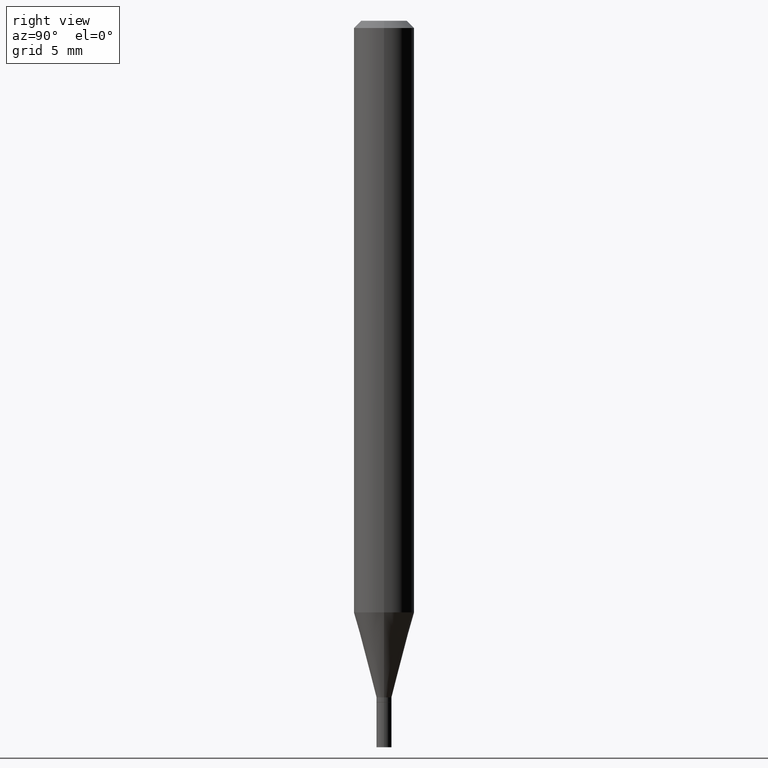
[diagram: clean part render]
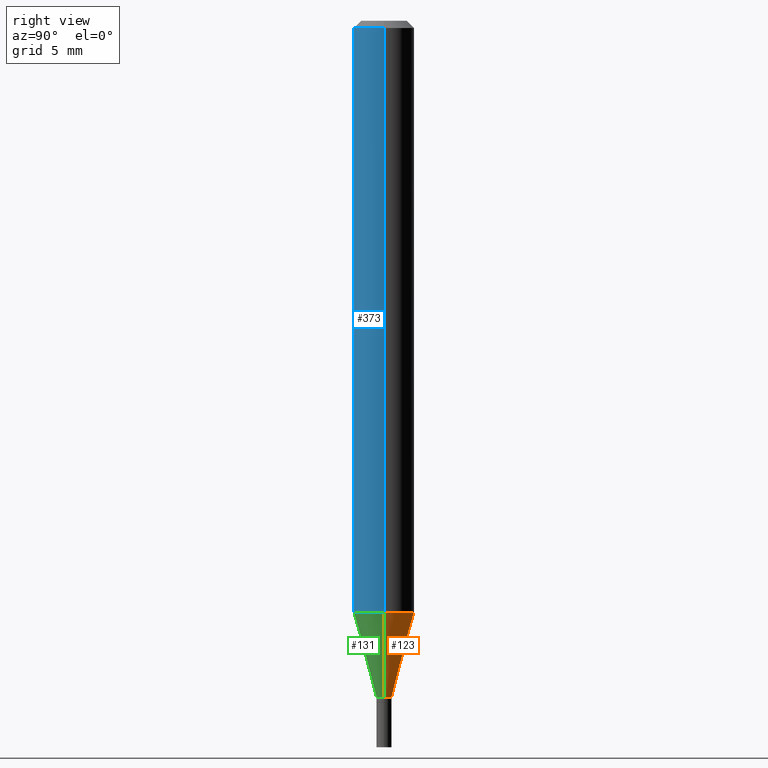
[diagram: same view with three faces highlighted in distinct colors, each labeled with its STEP entity id]
A machine part, right view with three faces highlighted in distinct colors.
Their STEP definitions:

[orange] entity #123 — the highlighted conical surface has half-angle 15 deg.
#3 = EDGE_CURVE ( 'NONE', #184, #27, #83, .T. ) ;
#14 = LINE ( 'NONE', #414, #203 ) ;
#19 = AXIS2_PLACEMENT_3D ( 'NONE', #426, #416, #96 ) ;
#27 = VERTEX_POINT ( 'NONE', #125 ) ;
#28 = EDGE_CURVE ( 'NONE', #463, #419, #406, .T. ) ;
#34 = CARTESIAN_POINT ( 'NONE',  ( 2.987369072089272424E-29, -4.265171300102537329E-15, -1.221593612044262978 ) ) ;
#35 = EDGE_CURVE ( 'NONE', #463, #184, #194, .T. ) ;
#50 = DIRECTION ( 'NONE',  ( 1.000000000000000000, -6.982962677686270655E-15, 0.000000000000000000 ) ) ;
#53 = DIRECTION ( 'NONE',  ( -2.445468806185136597E-29, 3.491481338843145583E-15, 1.000000000000000000 ) ) ;
#55 = CARTESIAN_POINT ( 'NONE',  ( 0.01549999999999992183, -4.985835351868011408E-15, -1.397000000000000242 ) ) ;
#57 = EDGE_CURVE ( 'NONE', #419, #27, #14, .T. ) ;
#77 = DIRECTION ( 'NONE',  ( -2.445468806185136597E-29, 3.491481338843145583E-15, 1.000000000000000000 ) ) ;
#83 = CIRCLE ( 'NONE', #340, 0.06250000000000000000 ) ;
#93 = DIRECTION ( 'NONE',  ( -0.2588190451025212391, 5.211531920934549464E-15, 0.9659258262890679791 ) ) ;
#96 = DIRECTION ( 'NONE',  ( 1.000000000000000000, -6.982962677686273810E-15, 0.000000000000000000 ) ) ;
#123 = ADVANCED_FACE ( 'NONE', ( #418 ), #302, .T. ) ;
#125 = CARTESIAN_POINT ( 'NONE',  ( -0.06250000000000000000, -3.821082090252475502E-15, -1.221593612044262978 ) ) ;
#134 = EDGE_LOOP ( 'NONE', ( #170, #158, #273, #459 ) ) ;
#156 = CARTESIAN_POINT ( 'NONE',  ( 3.416319922240636557E-29, -4.877599430363875031E-15, -1.397000000000000242 ) ) ;
#158 = ORIENTED_EDGE ( 'NONE', *, *, #57, .T. ) ;
#170 = ORIENTED_EDGE ( 'NONE', *, *, #28, .T. ) ;
#184 = VERTEX_POINT ( 'NONE', #275 ) ;
#194 = LINE ( 'NONE', #55, #457 ) ;
#198 = AXIS2_PLACEMENT_3D ( 'NONE', #156, #53, #301 ) ;
#203 = VECTOR ( 'NONE', #93, 39.37007874015748854 ) ;
#273 = ORIENTED_EDGE ( 'NONE', *, *, #3, .F. ) ;
#275 = CARTESIAN_POINT ( 'NONE',  ( 0.06250000000000000000, -4.701606467457928999E-15, -1.221593612044262978 ) ) ;
#297 = CARTESIAN_POINT ( 'NONE',  ( -0.01549999999999992183, -4.294273698286767256E-15, -1.397000000000000242 ) ) ;
#301 = DIRECTION ( 'NONE',  ( 1.000000000000000000, -6.982962677686273810E-15, 0.000000000000000000 ) ) ;
#302 = CONICAL_SURFACE ( 'NONE', #19, 0.01549999999999992183, 0.2617993877991499629 ) ;
#306 = CARTESIAN_POINT ( 'NONE',  ( 0.01549999999999992183, -4.985835351868011408E-15, -1.397000000000000242 ) ) ;
#340 = AXIS2_PLACEMENT_3D ( 'NONE', #34, #77, #50 ) ;
#406 = CIRCLE ( 'NONE', #198, 0.01549999999999992183 ) ;
#414 = CARTESIAN_POINT ( 'NONE',  ( -0.01549999999999992183, -4.767465306321060588E-15, -1.397000000000000242 ) ) ;
#416 = DIRECTION ( 'NONE',  ( -2.445468806185136597E-29, 3.491481338843145583E-15, 1.000000000000000000 ) ) ;
#418 = FACE_OUTER_BOUND ( 'NONE', #134, .T. ) ;
#419 = VERTEX_POINT ( 'NONE', #297 ) ;
#426 = CARTESIAN_POINT ( 'NONE',  ( 3.416319922240636557E-29, -4.877599430363875031E-15, -1.397000000000000242 ) ) ;
#441 = DIRECTION ( 'NONE',  ( 0.2588190451025212391, 1.565188264969622362E-15, 0.9659258262890679791 ) ) ;
#457 = VECTOR ( 'NONE', #441, 39.37007874015748854 ) ;
#459 = ORIENTED_EDGE ( 'NONE', *, *, #35, .F. ) ;
#463 = VERTEX_POINT ( 'NONE', #306 ) ;

[blue] entity #373 — the highlighted cylindrical surface (edge-blend (fillet) strip) has radius 1.5875 mm, axis along (-0, 0, 1).
#5 = VECTOR ( 'NONE', #39, 39.37007874015748143 ) ;
#27 = VERTEX_POINT ( 'NONE', #125 ) ;
#33 = CARTESIAN_POINT ( 'NONE',  ( -0.06250000000000000000, 4.440892098500626162E-16, -3.074334431409316114E-30 ) ) ;
#39 = DIRECTION ( 'NONE',  ( -2.445468806185136877E-29, 3.491481338843145188E-15, 1.000000000000000000 ) ) ;
#41 = DIRECTION ( 'NONE',  ( -2.445468806185136597E-29, 3.491481338843145583E-15, 1.000000000000000000 ) ) ;
#48 = AXIS2_PLACEMENT_3D ( 'NONE', #111, #326, #325 ) ;
#70 = CARTESIAN_POINT ( 'NONE',  ( 3.668203209277705088E-31, -5.237222008264718399E-17, -0.01499999999999999944 ) ) ;
#76 = FACE_OUTER_BOUND ( 'NONE', #181, .T. ) ;
#78 = LINE ( 'NONE', #33, #5 ) ;
#95 = VERTEX_POINT ( 'NONE', #451 ) ;
#111 = CARTESIAN_POINT ( 'NONE',  ( 0.000000000000000000, 0.000000000000000000, 0.000000000000000000 ) ) ;
#116 = CYLINDRICAL_SURFACE ( 'NONE', #48, 0.06250000000000000000 ) ;
#125 = CARTESIAN_POINT ( 'NONE',  ( -0.06250000000000000000, -3.821082090252475502E-15, -1.221593612044262978 ) ) ;
#133 = DIRECTION ( 'NONE',  ( 1.000000000000000000, -6.982962677686266711E-15, 0.000000000000000000 ) ) ;
#144 = ORIENTED_EDGE ( 'NONE', *, *, #332, .T. ) ;
#173 = ORIENTED_EDGE ( 'NONE', *, *, #342, .F. ) ;
#181 = EDGE_LOOP ( 'NONE', ( #173, #391, #144, #205 ) ) ;
#182 = EDGE_CURVE ( 'NONE', #95, #249, #339, .T. ) ;
#183 = LINE ( 'NONE', #251, #404 ) ;
#184 = VERTEX_POINT ( 'NONE', #275 ) ;
#192 = CIRCLE ( 'NONE', #347, 0.06250000000000000000 ) ;
#205 = ORIENTED_EDGE ( 'NONE', *, *, #182, .F. ) ;
#249 = VERTEX_POINT ( 'NONE', #440 ) ;
#251 = CARTESIAN_POINT ( 'NONE',  ( 0.06250000000000000000, -4.364351673553916694E-16, 3.047610484872459871E-30 ) ) ;
#260 = DIRECTION ( 'NONE',  ( 1.000000000000000000, -6.982962677686270655E-15, 0.000000000000000000 ) ) ;
#275 = CARTESIAN_POINT ( 'NONE',  ( 0.06250000000000000000, -4.701606467457928999E-15, -1.221593612044262978 ) ) ;
#293 = EDGE_CURVE ( 'NONE', #27, #184, #192, .T. ) ;
#325 = DIRECTION ( 'NONE',  ( 1.000000000000000000, -6.982962677686266711E-15, 4.876176775795935793E-29 ) ) ;
#326 = DIRECTION ( 'NONE',  ( -2.445468806185136597E-29, 3.491481338843145583E-15, 1.000000000000000000 ) ) ;
#332 = EDGE_CURVE ( 'NONE', #184, #249, #183, .T. ) ;
#339 = CIRCLE ( 'NONE', #455, 0.06250000000000000000 ) ;
#342 = EDGE_CURVE ( 'NONE', #27, #95, #78, .T. ) ;
#347 = AXIS2_PLACEMENT_3D ( 'NONE', #364, #41, #260 ) ;
#362 = DIRECTION ( 'NONE',  ( -2.445468806185136877E-29, 3.491481338843145188E-15, 1.000000000000000000 ) ) ;
#364 = CARTESIAN_POINT ( 'NONE',  ( 2.987369072089272424E-29, -4.265171300102537329E-15, -1.221593612044262978 ) ) ;
#373 = ADVANCED_FACE ( 'NONE', ( #76 ), #116, .T. ) ;
#391 = ORIENTED_EDGE ( 'NONE', *, *, #293, .T. ) ;
#404 = VECTOR ( 'NONE', #362, 39.37007874015748143 ) ;
#440 = CARTESIAN_POINT ( 'NONE',  ( 0.06250000000000000000, -4.888073874380388472E-16, -0.01499999999999999944 ) ) ;
#451 = CARTESIAN_POINT ( 'NONE',  ( -0.06250000000000000000, -1.714682550242529785E-15, -0.01499999999999999944 ) ) ;
#452 = DIRECTION ( 'NONE',  ( -2.445468806185136597E-29, 3.491481338843145583E-15, 1.000000000000000000 ) ) ;
#455 = AXIS2_PLACEMENT_3D ( 'NONE', #70, #452, #133 ) ;

[green] entity #131 — the highlighted conical surface has half-angle 15 deg.
#14 = LINE ( 'NONE', #414, #203 ) ;
#23 = CARTESIAN_POINT ( 'NONE',  ( 3.416319922240636557E-29, -4.877599430363875031E-15, -1.397000000000000242 ) ) ;
#27 = VERTEX_POINT ( 'NONE', #125 ) ;
#35 = EDGE_CURVE ( 'NONE', #463, #184, #194, .T. ) ;
#41 = DIRECTION ( 'NONE',  ( -2.445468806185136597E-29, 3.491481338843145583E-15, 1.000000000000000000 ) ) ;
#55 = CARTESIAN_POINT ( 'NONE',  ( 0.01549999999999992183, -4.985835351868011408E-15, -1.397000000000000242 ) ) ;
#57 = EDGE_CURVE ( 'NONE', #419, #27, #14, .T. ) ;
#61 = DIRECTION ( 'NONE',  ( -2.445468806185136597E-29, 3.491481338843145583E-15, 1.000000000000000000 ) ) ;
#93 = DIRECTION ( 'NONE',  ( -0.2588190451025212391, 5.211531920934549464E-15, 0.9659258262890679791 ) ) ;
#125 = CARTESIAN_POINT ( 'NONE',  ( -0.06250000000000000000, -3.821082090252475502E-15, -1.221593612044262978 ) ) ;
#128 = EDGE_CURVE ( 'NONE', #419, #463, #367, .T. ) ;
#131 = ADVANCED_FACE ( 'NONE', ( #244 ), #348, .T. ) ;
#164 = ORIENTED_EDGE ( 'NONE', *, *, #35, .T. ) ;
#166 = AXIS2_PLACEMENT_3D ( 'NONE', #458, #237, #392 ) ;
#184 = VERTEX_POINT ( 'NONE', #275 ) ;
#192 = CIRCLE ( 'NONE', #347, 0.06250000000000000000 ) ;
#194 = LINE ( 'NONE', #55, #457 ) ;
#203 = VECTOR ( 'NONE', #93, 39.37007874015748854 ) ;
#207 = DIRECTION ( 'NONE',  ( 1.000000000000000000, -6.982962677686273810E-15, 0.000000000000000000 ) ) ;
#215 = ORIENTED_EDGE ( 'NONE', *, *, #57, .F. ) ;
#237 = DIRECTION ( 'NONE',  ( -2.445468806185136597E-29, 3.491481338843145583E-15, 1.000000000000000000 ) ) ;
#240 = ORIENTED_EDGE ( 'NONE', *, *, #293, .F. ) ;
#244 = FACE_OUTER_BOUND ( 'NONE', #365, .T. ) ;
#260 = DIRECTION ( 'NONE',  ( 1.000000000000000000, -6.982962677686270655E-15, 0.000000000000000000 ) ) ;
#262 = AXIS2_PLACEMENT_3D ( 'NONE', #23, #61, #207 ) ;
#275 = CARTESIAN_POINT ( 'NONE',  ( 0.06250000000000000000, -4.701606467457928999E-15, -1.221593612044262978 ) ) ;
#293 = EDGE_CURVE ( 'NONE', #27, #184, #192, .T. ) ;
#297 = CARTESIAN_POINT ( 'NONE',  ( -0.01549999999999992183, -4.294273698286767256E-15, -1.397000000000000242 ) ) ;
#306 = CARTESIAN_POINT ( 'NONE',  ( 0.01549999999999992183, -4.985835351868011408E-15, -1.397000000000000242 ) ) ;
#347 = AXIS2_PLACEMENT_3D ( 'NONE', #364, #41, #260 ) ;
#348 = CONICAL_SURFACE ( 'NONE', #166, 0.01549999999999992183, 0.2617993877991499629 ) ;
#359 = ORIENTED_EDGE ( 'NONE', *, *, #128, .T. ) ;
#364 = CARTESIAN_POINT ( 'NONE',  ( 2.987369072089272424E-29, -4.265171300102537329E-15, -1.221593612044262978 ) ) ;
#365 = EDGE_LOOP ( 'NONE', ( #215, #359, #164, #240 ) ) ;
#367 = CIRCLE ( 'NONE', #262, 0.01549999999999992183 ) ;
#392 = DIRECTION ( 'NONE',  ( 1.000000000000000000, -6.982962677686273810E-15, 0.000000000000000000 ) ) ;
#414 = CARTESIAN_POINT ( 'NONE',  ( -0.01549999999999992183, -4.767465306321060588E-15, -1.397000000000000242 ) ) ;
#419 = VERTEX_POINT ( 'NONE', #297 ) ;
#441 = DIRECTION ( 'NONE',  ( 0.2588190451025212391, 1.565188264969622362E-15, 0.9659258262890679791 ) ) ;
#457 = VECTOR ( 'NONE', #441, 39.37007874015748854 ) ;
#458 = CARTESIAN_POINT ( 'NONE',  ( 3.416319922240636557E-29, -4.877599430363875031E-15, -1.397000000000000242 ) ) ;
#463 = VERTEX_POINT ( 'NONE', #306 ) ;